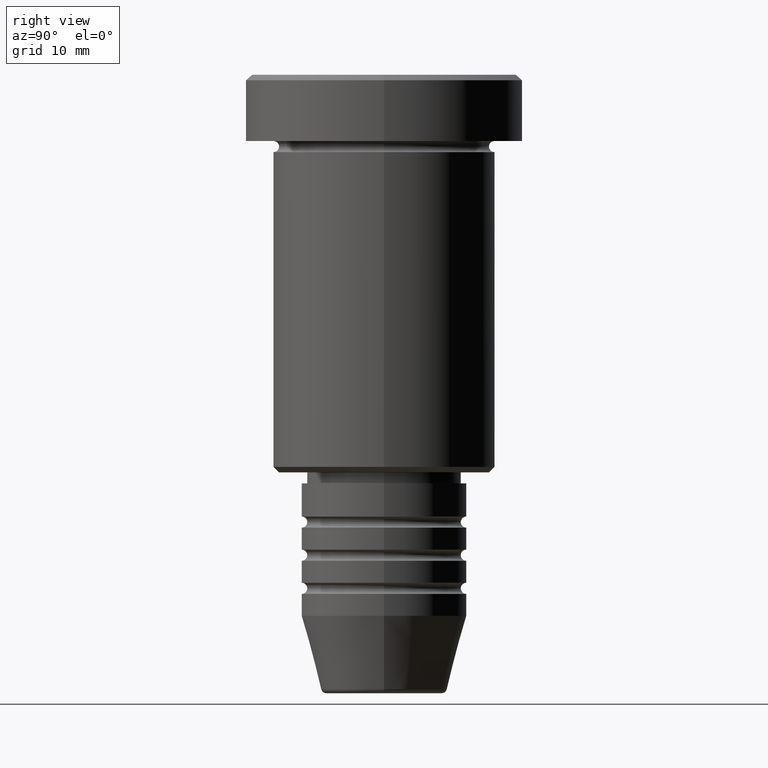
[diagram: clean part render]
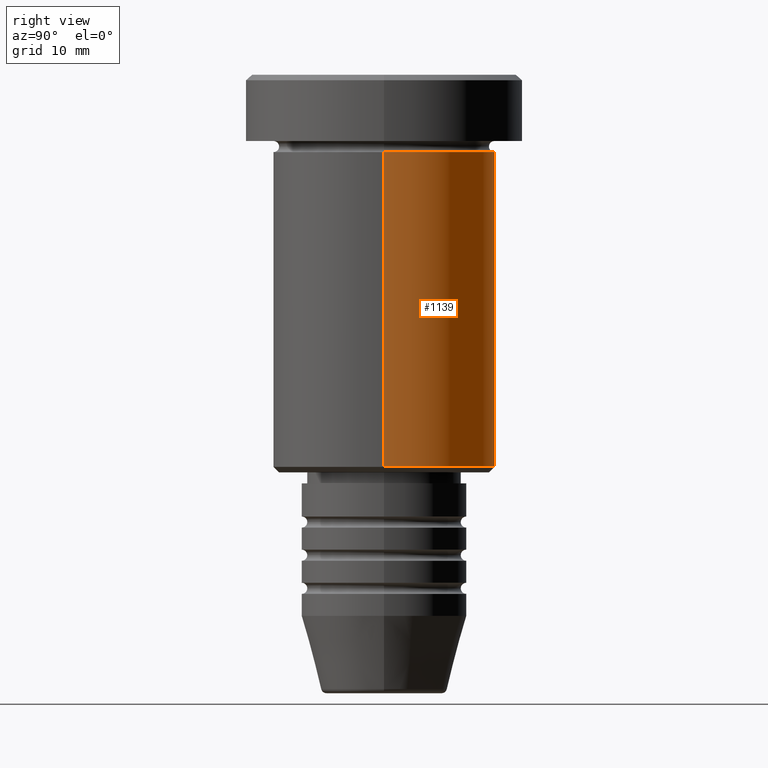
[diagram: same view with one face highlighted and labeled with its STEP entity id]
A machine part, right view. The second image highlights one B-rep face of the part: STEP entity #1139.
In plain terms, the highlighted cylindrical surface (partial cylindrical patch) has radius 10 mm, axis along (-0, -0, 1).
Its self-contained STEP definition (entity closure, byte-faithful):
#27 = DIRECTION ( 'NONE',  ( 1.000000000000000000, 0.000000000000000000, 0.000000000000000000 ) ) ;
#42 = EDGE_CURVE ( 'NONE', #392, #903, #532, .T. ) ;
#44 = AXIS2_PLACEMENT_3D ( 'NONE', #571, #930, #27 ) ;
#46 = DIRECTION ( 'NONE',  ( -0.000000000000000000, -0.000000000000000000, 1.000000000000000000 ) ) ;
#75 = VECTOR ( 'NONE', #46, 1000.000000000000000 ) ;
#126 = FACE_OUTER_BOUND ( 'NONE', #680, .T. ) ;
#140 = VECTOR ( 'NONE', #443, 1000.000000000000000 ) ;
#146 = LINE ( 'NONE', #862, #75 ) ;
#199 = DIRECTION ( 'NONE',  ( -0.000000000000000000, -0.000000000000000000, 1.000000000000000000 ) ) ;
#205 = EDGE_CURVE ( 'NONE', #903, #1036, #366, .T. ) ;
#210 = VERTEX_POINT ( 'NONE', #660 ) ;
#223 = ORIENTED_EDGE ( 'NONE', *, *, #907, .T. ) ;
#253 = AXIS2_PLACEMENT_3D ( 'NONE', #419, #601, #699 ) ;
#282 = CARTESIAN_POINT ( 'NONE',  ( 0.000000000000000000, 0.000000000000000000, -6.999999999999996447 ) ) ;
#348 = CARTESIAN_POINT ( 'NONE',  ( 10.00000000000000000, 0.000000000000000000, -6.999999999999996447 ) ) ;
#349 = CARTESIAN_POINT ( 'NONE',  ( 10.00000000000000000, 0.000000000000000000, 0.000000000000000000 ) ) ;
#356 = EDGE_CURVE ( 'NONE', #210, #1036, #146, .T. ) ;
#366 = CIRCLE ( 'NONE', #737, 10.00000000000000000 ) ;
#390 = CYLINDRICAL_SURFACE ( 'NONE', #44, 10.00000000000000000 ) ;
#392 = VERTEX_POINT ( 'NONE', #950 ) ;
#419 = CARTESIAN_POINT ( 'NONE',  ( 0.000000000000000000, 0.000000000000000000, -35.50000000000000000 ) ) ;
#443 = DIRECTION ( 'NONE',  ( -0.000000000000000000, -0.000000000000000000, 1.000000000000000000 ) ) ;
#468 = DIRECTION ( 'NONE',  ( 1.000000000000000000, 0.000000000000000000, 0.000000000000000000 ) ) ;
#532 = LINE ( 'NONE', #349, #140 ) ;
#571 = CARTESIAN_POINT ( 'NONE',  ( 0.000000000000000000, 0.000000000000000000, 0.000000000000000000 ) ) ;
#601 = DIRECTION ( 'NONE',  ( -0.000000000000000000, -0.000000000000000000, 1.000000000000000000 ) ) ;
#646 = ORIENTED_EDGE ( 'NONE', *, *, #205, .F. ) ;
#660 = CARTESIAN_POINT ( 'NONE',  ( -10.00000000000000000, 1.224646799147353256E-15, -35.50000000000000000 ) ) ;
#680 = EDGE_LOOP ( 'NONE', ( #223, #898, #646, #760 ) ) ;
#699 = DIRECTION ( 'NONE',  ( -1.000000000000000000, 0.000000000000000000, 0.000000000000000000 ) ) ;
#737 = AXIS2_PLACEMENT_3D ( 'NONE', #282, #199, #468 ) ;
#760 = ORIENTED_EDGE ( 'NONE', *, *, #42, .F. ) ;
#862 = CARTESIAN_POINT ( 'NONE',  ( -10.00000000000000000, 1.224646799147353256E-15, 0.000000000000000000 ) ) ;
#898 = ORIENTED_EDGE ( 'NONE', *, *, #356, .T. ) ;
#903 = VERTEX_POINT ( 'NONE', #348 ) ;
#907 = EDGE_CURVE ( 'NONE', #392, #210, #1091, .T. ) ;
#930 = DIRECTION ( 'NONE',  ( -0.000000000000000000, -0.000000000000000000, 1.000000000000000000 ) ) ;
#950 = CARTESIAN_POINT ( 'NONE',  ( 10.00000000000000000, 0.000000000000000000, -35.50000000000000000 ) ) ;
#1036 = VERTEX_POINT ( 'NONE', #1125 ) ;
#1091 = CIRCLE ( 'NONE', #253, 10.00000000000000000 ) ;
#1125 = CARTESIAN_POINT ( 'NONE',  ( -10.00000000000000000, 1.224646799147353256E-15, -6.999999999999996447 ) ) ;
#1139 = ADVANCED_FACE ( 'NONE', ( #126 ), #390, .T. ) ;